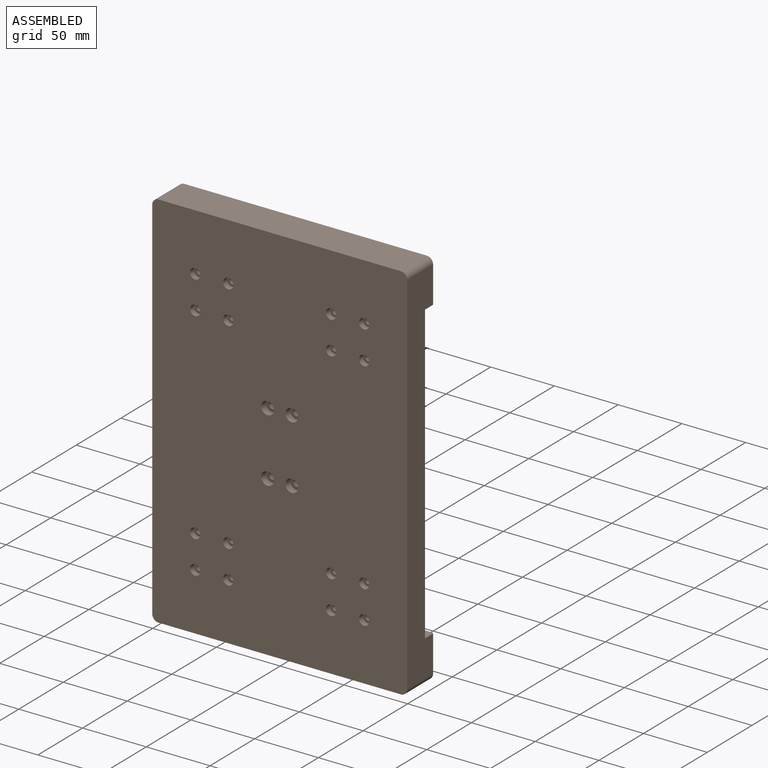
[diagram: assembled view]
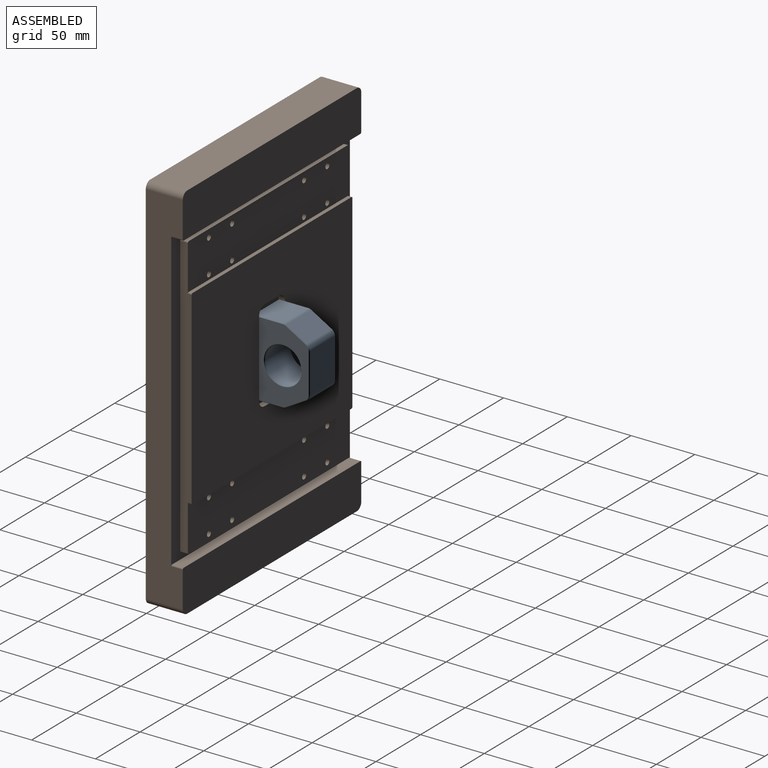
[diagram: assembled view, second angle]
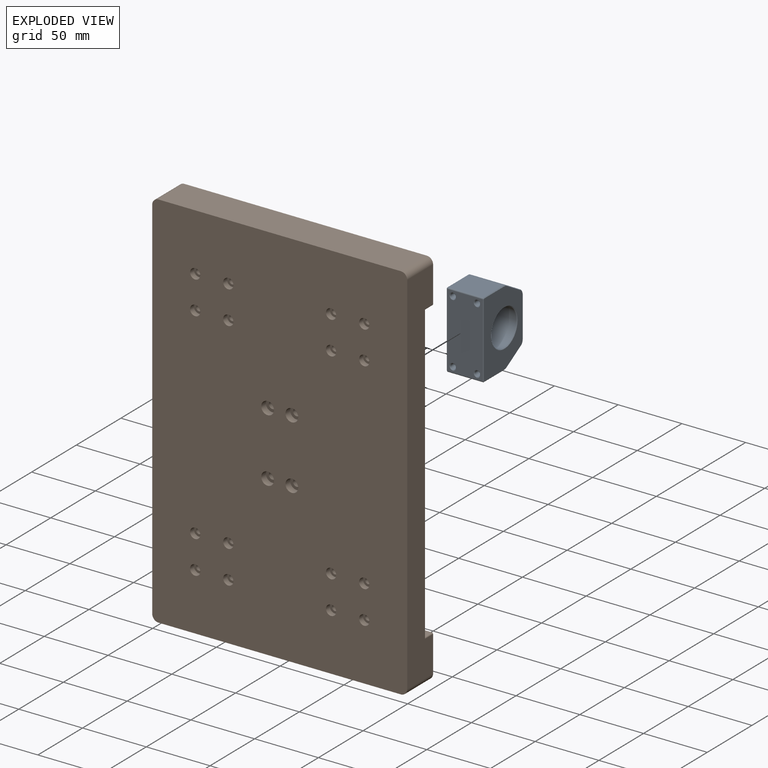
[diagram: exploded view]
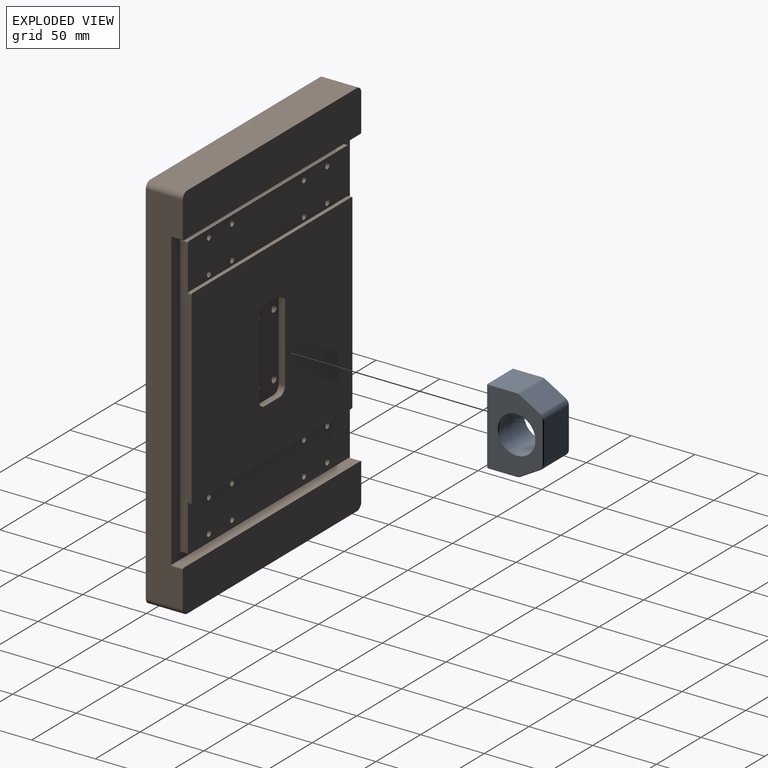
[diagram: exploded view, second angle]
FCSTD DOCUMENT  (FreeCAD 0.21R38887 (Git))
Label: СборкаСтола
License: All rights reserved
LicenseURL: http://en.wikipedia.org/wiki/All_rights_reserved
objects: App::FeaturePython×55, Part::FeaturePython×49, App::Link×4, App::LinkElement×4
note: 48 computed .brp shape members not serialized (recipe doc carries the construction recipe); baked Part::Feature solids carry a one-line shape summary decoded from their .brp
EXTERNAL_REF file=КронштейнГайки.FCStd obj=Body
EXTERNAL_REF file=Стол.FCStd obj=Body
EXTERNAL_REF file=HGH15CA.FCStd obj=Assembly
EXTERNAL_REF file=SFU1605.FCStd obj=Assembly

FEATURE [App::Link] Link  label="КронштейнГайкиX"
  AutoLinkLabel = false
  AutoPlacement = true
  LinkPlacement = pos=(-14.5,47,14.5) rot=(-0.707107,0,-0.707107;3.14159rad)
  LinkedObject = -> <external КронштейнГайки.FCStd>#Body
  Placement = pos=(-14.5,47,14.5) rot=(-0.707107,0,-0.707107;3.14159rad)
  SyncGroupVisibility = false
  TreeRank = 0
  _LinkOwner = 3680
  _LinkVersion = 1
FEATURE [App::Link] Link001  label="Body"
  AutoLinkLabel = false
  AutoPlacement = true
  LinkPlacement = pos=(3.2e-15,-0.5,14.5) rot=(-0.57735,-0.57735,-0.57735;2.0944rad)
  LinkedObject = -> <external Стол.FCStd>#Body
  Placement = pos=(3.2e-15,-0.5,14.5) rot=(-0.57735,-0.57735,-0.57735;2.0944rad)
  SyncGroupVisibility = false
  TreeRank = 0
  _LinkOwner = 3680
  _LinkVersion = 1
FEATURE [App::LinkElement] Link002_i0
  LinkPlacement = pos=(22.599,53.5,-77.5) rot=(0.57735,0.57735,-0.57735;2.0944rad)
  LinkedObject = -> <external HGH15CA.FCStd>#Assembly
  Placement = pos=(22.599,53.5,-77.5) rot=(0.57735,0.57735,-0.57735;2.0944rad)
  TreeRank = 86
  _LinkOwner = 3775
  _LinkVersion = 1
FEATURE [App::LinkElement] Link002_i1
  LinkPlacement = pos=(-84.001,53.5,-77.5) rot=(-0.57735,-0.57735,0.57735;4.18879rad)
  LinkedObject = -> <external HGH15CA.FCStd>#Assembly
  Placement = pos=(-84.001,53.5,-77.5) rot=(-0.57735,-0.57735,0.57735;4.18879rad)
  TreeRank = 87
  _LinkOwner = 3775
  _LinkVersion = 1
FEATURE [App::LinkElement] Link002_i2
  LinkPlacement = pos=(84.001,53.5,106.5) rot=(-0.57735,0.57735,-0.57735;4.18879rad)
  LinkedObject = -> <external HGH15CA.FCStd>#Assembly
  Placement = pos=(84.001,53.5,106.5) rot=(-0.57735,0.57735,-0.57735;4.18879rad)
  TreeRank = 88
  _LinkOwner = 3775
  _LinkVersion = 1
FEATURE [App::LinkElement] Link002_i3
  LinkPlacement = pos=(-22.599,53.5,106.5) rot=(0.57735,-0.57735,0.57735;2.0944rad)
  LinkedObject = -> <external HGH15CA.FCStd>#Assembly
  Placement = pos=(-22.599,53.5,106.5) rot=(0.57735,-0.57735,0.57735;2.0944rad)
  TreeRank = 89
  _LinkOwner = 3775
  _LinkVersion = 1
FEATURE [App::Link] Link002  label="HGH15CA"
  AutoLinkLabel = false
  AutoPlacement = true
  ElementCount = 4
  ElementList = -> [Link002_i0,Link002_i1,Link002_i2,Link002_i3]
  LinkedObject = -> <external HGH15CA.FCStd>#Assembly
  SyncGroupVisibility = false
  TreeRank = 85
  _LinkOwner = 3680
  _LinkVersion = 1
FEATURE [App::Link] Link003  label="SFU1606"
  AutoLinkLabel = false
  AutoPlacement = true
  LinkPlacement = pos=(-24.5,47,14.5) rot=(0,-1,0;1.5708rad)
  LinkedObject = -> <external SFU1605.FCStd>#Assembly
  Placement = pos=(-24.5,47,14.5) rot=(0,-1,0;1.5708rad)
  SyncGroupVisibility = false
  TreeRank = 138
  _LinkOwner = 3680
  _LinkVersion = 1
FEATURE [Part::FeaturePython] Parts  # WARN: FeaturePython — macro-defined, semantics opaque (R4)
  Group = -> [Link,Link001,Link002,Link003]
  GroupMode = 0
  InvalidShape = false
  TreeRank = 0
  ValidateShape = false
  _LinkVersion = 1
FEATURE [Part::FeaturePython] Assembly  # WARN: FeaturePython — macro-defined, semantics opaque (R4)
  AutoRelax = true
  BuildShape = 0
  Freeze = false
  Group = -> [Constraints,Elements,Parts]
  InvalidShape = false
  TreeRank = 0
  ValidateShape = false
  Verbose = false
  _LinkVersion = 1
  _SolverType = 1
  _Version = 1
FEATURE [App::FeaturePython] Constraints  # WARN: FeaturePython — macro-defined, semantics opaque (R4)
  Group = -> [Constraint001,Constraint,Constraint002,Constraint003,Constraint004,Constraint005,Constraint006,Constraint007,Constraint008,Constraint009,Constraint010,Constraint011,Constraint012,Constraint013,Constraint014,Constraint015,Constraint016,Constraint017]
  TreeRank = 0
  _LinkVersion = 1
  _Version = 1
FEATURE [App::FeaturePython] Elements  # WARN: FeaturePython — macro-defined, semantics opaque (R4)
  Group = -> [Element,Element001,_Element,_Element001,_Element002,Element002,Element003,Element004,Element005,Element006,Element007,Element008,Element009,Element010,Element011,Element012,Element013,Element014,Element015,Element016,Element018,Element019,Element020,Element021,Element022,Element023,Element024,_Element003,_Element004,_Element005,_Element006,_Element007,_Element008,_Element009,_Element010,+12 more]
  TreeRank = 0
  _LinkVersion = 1
FEATURE [Part::FeaturePython] Element  label="ПосадкаКронштейна"  # link proxy (typed FeaturePython)
  Detach = false
  InvalidShape = false
  LinkTransform = true
  LinkedObject = -> Link001 [Hole001.Face104]
  TreeRank = 2
  ValidateShape = false
  _LinkVersion = 1
  _Parent = -> Elements
FEATURE [Part::FeaturePython] Element001  label="КронштейнКСтолу"  # link proxy (typed FeaturePython)
  Detach = false
  InvalidShape = false
  LinkTransform = true
  LinkedObject = -> Link [Chamfer.Face2]
  Offset = pos=(0,0,0) rot=(1,0,0;3.14159rad)
  Placement = pos=(-1.65931e-09,47,2.63617e-09) rot=(0,0,1;3.14159rad)
  TreeRank = 3
  ValidateShape = false
  _LinkVersion = 1
  _Parent = -> Elements
FEATURE [App::FeaturePython] Constraint001  label="Locked"  # WARN: FeaturePython — macro-defined, semantics opaque (R4)
  Disabled = false
  Group = -> [ElementLink002]
  TreeRank = 7
  _ConstraintType = 0
  _LinkVersion = 1
  _Parent = -> Constraints
FEATURE [App::FeaturePython] ElementLink002  label="ФиксацияПоложенияСтола"  # link proxy (typed FeaturePython)
  LinkTransform = true
  LinkedObject = -> _Element
  TreeRank = 8
  _LinkVersion = 1
  _Parent = -> Constraint001
FEATURE [Part::FeaturePython] _Element  label="ФиксацияПоложенияСтола"  # link proxy (typed FeaturePython)
  Detach = false
  InvalidShape = false
  LinkTransform = true
  LinkedObject = -> Link001 [Hole001.Face51]
  TreeRank = 9
  ValidateShape = false
  _LinkVersion = 1
  _Parent = -> Elements
FEATURE [Part::FeaturePython] _Element001  # link proxy (typed FeaturePython)
  Detach = false
  InvalidShape = false
  LinkTransform = true
  LinkedObject = -> Link [Chamfer.Face14]
  TreeRank = 12
  ValidateShape = false
  _LinkVersion = 1
  _Parent = -> Elements
FEATURE [Part::FeaturePython] _Element002  # link proxy (typed FeaturePython)
  Detach = false
  InvalidShape = false
  LinkTransform = true
  LinkedObject = -> Link001 [Hole001.Face93]
  TreeRank = 14
  ValidateShape = false
  _LinkVersion = 1
  _Parent = -> Elements
FEATURE [App::FeaturePython] Constraint  label="PlaneAlignment"  # WARN: FeaturePython — macro-defined, semantics opaque (R4)
  Angle = 0
  AnglePitch = 0
  AngleRoll = 0
  Cascade = false
  Disabled = false
  Group = -> [ElementLink,ElementLink005]
  LockAngle = false
  TreeRank = 18
  _ConstraintType = 37
  _LinkVersion = 1
  _Parent = -> Constraints
FEATURE [App::FeaturePython] ElementLink  label="КронштейнКСтолу"  # link proxy (typed FeaturePython)
  LinkTransform = true
  LinkedObject = -> Element001
  TreeRank = 19
  _LinkVersion = 1
  _Parent = -> Constraint
FEATURE [App::FeaturePython] ElementLink005  label="ПосадкаКронштейна"  # link proxy (typed FeaturePython)
  LinkTransform = true
  LinkedObject = -> Element
  TreeRank = 20
  _LinkVersion = 1
  _Parent = -> Constraint
FEATURE [App::FeaturePython] Constraint002  label="PlaneAlignment001"  # WARN: FeaturePython — macro-defined, semantics opaque (R4)
  Angle = 0
  AnglePitch = 0
  AngleRoll = 0
  Cascade = false
  Disabled = false
  Group = -> [ElementLink006,ElementLink007]
  LockAngle = false
  TreeRank = 21
  _ConstraintType = 37
  _LinkVersion = 1
  _Parent = -> Constraints
FEATURE [App::FeaturePython] ElementLink006  label="_Element001"  # link proxy (typed FeaturePython)
  LinkTransform = true
  LinkedObject = -> _Element001
  TreeRank = 22
  _LinkVersion = 1
  _Parent = -> Constraint002
FEATURE [App::FeaturePython] ElementLink007  label="_Element002"  # link proxy (typed FeaturePython)
  LinkTransform = true
  LinkedObject = -> _Element002
  TreeRank = 23
  _LinkVersion = 1
  _Parent = -> Constraint002
FEATURE [Part::FeaturePython] Element002  label="ОтверстиеВКроншт"  # link proxy (typed FeaturePython)
  Detach = false
  InvalidShape = false
  LinkTransform = true
  LinkedObject = -> Link [Chamfer.Face22]
  TreeRank = 24
  ValidateShape = false
  _LinkVersion = 1
  _Parent = -> Elements
FEATURE [Part::FeaturePython] Element003  label="ОтверстиеСТолКроншт"  # link proxy (typed FeaturePython)
  Detach = false
  InvalidShape = false
  LinkTransform = true
  LinkedObject = -> Link001 [Hole001.Face103]
  TreeRank = 25
  ValidateShape = false
  _LinkVersion = 1
  _Parent = -> Elements
FEATURE [App::FeaturePython] Constraint003  label="AxialAlignment"  # WARN: FeaturePython — macro-defined, semantics opaque (R4)
  Angle = 0
  AnglePitch = 0
  AngleRoll = 0
  Disabled = false
  Group = -> [ElementLink008,ElementLink009]
  LockAngle = false
  Multiply = false
  TreeRank = 26
  _ConstraintType = 36
  _LinkVersion = 1
  _Parent = -> Constraints
FEATURE [App::FeaturePython] ElementLink008  label="ОтверстиеСТолКроншт"  # link proxy (typed FeaturePython)
  LinkTransform = true
  LinkedObject = -> Element003
  TreeRank = 27
  _LinkVersion = 1
  _Parent = -> Constraint003
FEATURE [App::FeaturePython] ElementLink009  label="ОтверстиеВКроншт"  # link proxy (typed FeaturePython)
  LinkTransform = true
  LinkedObject = -> Element002
  TreeRank = 28
  _LinkVersion = 1
  _Parent = -> Constraint003
FEATURE [Part::FeaturePython] Element004  label="ПлоскостьКареток1и2"  # link proxy (typed FeaturePython)
  Detach = false
  InvalidShape = false
  LinkTransform = true
  LinkedObject = -> Link001 [Hole001.Face47]
  TreeRank = 34
  ValidateShape = false
  _LinkVersion = 1
  _Parent = -> Elements
FEATURE [Part::FeaturePython] Element005  label="ПлоскостьКареток3и4"  # link proxy (typed FeaturePython)
  Detach = false
  InvalidShape = false
  LinkTransform = true
  LinkedObject = -> Link001 [Hole001.Face48]
  TreeRank = 35
  ValidateShape = false
  _LinkVersion = 1
  _Parent = -> Elements
FEATURE [Part::FeaturePython] Element006  label="БоковаяПлоскостьКареток1и2"  # link proxy (typed FeaturePython)
  Detach = false
  InvalidShape = false
  LinkTransform = true
  LinkedObject = -> Link001 [Hole001.Face74]
  TreeRank = 36
  ValidateShape = false
  _LinkVersion = 1
  _Parent = -> Elements
FEATURE [Part::FeaturePython] Element007  label="БоковаяПлоскостьКареток3и4"  # link proxy (typed FeaturePython)
  Detach = false
  InvalidShape = false
  LinkTransform = true
  LinkedObject = -> Link001 [Hole001.Face83]
  TreeRank = 37
  ValidateShape = false
  _LinkVersion = 1
  _Parent = -> Elements
FEATURE [Part::FeaturePython] Element008  label="СтолКареткаОтв1"  # link proxy (typed FeaturePython)
  Detach = false
  InvalidShape = false
  LinkTransform = true
  LinkedObject = -> Link001 [Hole001.Face80]
  TreeRank = 38
  ValidateShape = false
  _LinkVersion = 1
  _Parent = -> Elements
FEATURE [Part::FeaturePython] Element009  label="СтолКареткаОтв2"  # link proxy (typed FeaturePython)
  Detach = false
  InvalidShape = false
  LinkTransform = true
  LinkedObject = -> Link001 [Hole001.Face82]
  TreeRank = 39
  ValidateShape = false
  _LinkVersion = 1
  _Parent = -> Elements
FEATURE [Part::FeaturePython] Element010  label="СтолКареткаОтв3"  # link proxy (typed FeaturePython)
  Detach = false
  InvalidShape = false
  LinkTransform = true
  LinkedObject = -> Link001 [Hole001.Face81]
  TreeRank = 40
  ValidateShape = false
  _LinkVersion = 1
  _Parent = -> Elements
FEATURE [Part::FeaturePython] Element011  label="СтолКареткаОтв4"  # link proxy (typed FeaturePython)
  Detach = false
  InvalidShape = false
  LinkTransform = true
  LinkedObject = -> Link001 [Hole001.Face79]
  TreeRank = 41
  ValidateShape = false
  _LinkVersion = 1
  _Parent = -> Elements
FEATURE [Part::FeaturePython] Element012  label="СтолКаретка2Отв1"  # link proxy (typed FeaturePython)
  Detach = false
  InvalidShape = false
  LinkTransform = true
  LinkedObject = -> Link001 [Hole001.Face76]
  TreeRank = 42
  ValidateShape = false
  _LinkVersion = 1
  _Parent = -> Elements
FEATURE [Part::FeaturePython] Element013  label="СтолКаретка2Отв2"  # link proxy (typed FeaturePython)
  Detach = false
  InvalidShape = false
  LinkTransform = true
  LinkedObject = -> Link001 [Hole001.Face78]
  TreeRank = 43
  ValidateShape = false
  _LinkVersion = 1
  _Parent = -> Elements
FEATURE [Part::FeaturePython] Element014  label="СтолКаретка2Отв3"  # link proxy (typed FeaturePython)
  Detach = false
  InvalidShape = false
  LinkTransform = true
  LinkedObject = -> Link001 [Hole001.Face77]
  TreeRank = 44
  ValidateShape = false
  _LinkVersion = 1
  _Parent = -> Elements
FEATURE [Part::FeaturePython] Element015  label="СтолКаретка2Отв4"  # link proxy (typed FeaturePython)
  Detach = false
  InvalidShape = false
  LinkTransform = true
  LinkedObject = -> Link001 [Hole001.Face75]
  TreeRank = 45
  ValidateShape = false
  _LinkVersion = 1
  _Parent = -> Elements
FEATURE [Part::FeaturePython] Element016  label="СтолКаретка3Отв1"  # link proxy (typed FeaturePython)
  Detach = false
  InvalidShape = false
  LinkTransform = true
  LinkedObject = -> Link001 [Hole001.Face91]
  TreeRank = 76
  ValidateShape = false
  _LinkVersion = 1
  _Parent = -> Elements
FEATURE [Part::FeaturePython] Element018  label="СтолКаретка3Отв4"  # link proxy (typed FeaturePython)
  Detach = false
  InvalidShape = false
  LinkTransform = true
  LinkedObject = -> Link001 [Hole001.Face90]
  TreeRank = 78
  ValidateShape = false
  _LinkVersion = 1
  _Parent = -> Elements
FEATURE [Part::FeaturePython] Element019  label="СтолКаретка3Отв3"  # link proxy (typed FeaturePython)
  Detach = false
  InvalidShape = false
  LinkTransform = true
  LinkedObject = -> Link001 [Hole001.Face88]
  TreeRank = 79
  ValidateShape = false
  _LinkVersion = 1
  _Parent = -> Elements
FEATURE [Part::FeaturePython] Element020  label="СтолКаретка3Отв2"  # link proxy (typed FeaturePython)
  Detach = false
  InvalidShape = false
  LinkTransform = true
  LinkedObject = -> Link001 [Hole001.Face89]
  TreeRank = 80
  ValidateShape = false
  _LinkVersion = 1
  _Parent = -> Elements
FEATURE [Part::FeaturePython] Element021  label="СтолКаретка4Отв1"  # link proxy (typed FeaturePython)
  Detach = false
  InvalidShape = false
  LinkTransform = true
  LinkedObject = -> Link001 [Hole001.Face87]
  TreeRank = 81
  ValidateShape = false
  _LinkVersion = 1
  _Parent = -> Elements
FEATURE [Part::FeaturePython] Element022  label="СтолКаретка4Отв2"  # link proxy (typed FeaturePython)
  Detach = false
  InvalidShape = false
  LinkTransform = true
  LinkedObject = -> Link001 [Hole001.Face85]
  TreeRank = 82
  ValidateShape = false
  _LinkVersion = 1
  _Parent = -> Elements
FEATURE [Part::FeaturePython] Element023  label="СтолКаретка4Отв4"  # link proxy (typed FeaturePython)
  Detach = false
  InvalidShape = false
  LinkTransform = true
  LinkedObject = -> Link001 [Hole001.Face86]
  TreeRank = 83
  ValidateShape = false
  _LinkVersion = 1
  _Parent = -> Elements
FEATURE [Part::FeaturePython] Element024  label="СтолКаретка4Отв3"  # link proxy (typed FeaturePython)
  Detach = false
  InvalidShape = false
  LinkTransform = true
  LinkedObject = -> Link001 [Hole001.Face84]
  TreeRank = 84
  ValidateShape = false
  _LinkVersion = 1
  _Parent = -> Elements
FEATURE [App::FeaturePython] Constraint004  label="PlaneAlignment002"  # WARN: FeaturePython — macro-defined, semantics opaque (R4)
  Angle = 0
  AnglePitch = 0
  AngleRoll = 0
  Cascade = false
  Disabled = false
  Group = -> [ElementLink010,ElementLink011]
  LockAngle = false
  TreeRank = 90
  _ConstraintType = 37
  _LinkVersion = 1
  _Parent = -> Constraints
FEATURE [App::FeaturePython] ElementLink010  label="БоковаяПласкостьПрилегания@HGH15CA@#0"  # link proxy (typed FeaturePython)
  LinkTransform = true
  LinkedObject = -> _Element003
  TreeRank = 91
  _LinkVersion = 1
  _Parent = -> Constraint004
FEATURE [Part::FeaturePython] _Element003  label="БоковаяПласкостьПрилегания@HGH15CA@#0"  # link proxy (typed FeaturePython)
  Detach = false
  InvalidShape = false
  LinkTransform = true
  LinkedObject = -> Link002 [Link002_i0.1.$БоковаяПласкостьПрилегания.]
  TreeRank = 92
  ValidateShape = false
  _LinkVersion = 1
  _Parent = -> Elements
FEATURE [App::FeaturePython] ElementLink011  label="БоковаяПлоскостьКареток1и2"  # link proxy (typed FeaturePython)
  LinkTransform = true
  LinkedObject = -> Element006
  TreeRank = 93
  _LinkVersion = 1
  _Parent = -> Constraint004
FEATURE [App::FeaturePython] Constraint005  label="PlaneAlignment003"  # WARN: FeaturePython — macro-defined, semantics opaque (R4)
  Angle = 0
  AnglePitch = 0
  AngleRoll = 0
  Cascade = false
  Disabled = false
  Group = -> [ElementLink012,ElementLink013]
  LockAngle = false
  TreeRank = 94
  _ConstraintType = 37
  _LinkVersion = 1
  _Parent = -> Constraints
FEATURE [App::FeaturePython] ElementLink012  label="ПлоскостьПрилегания@HGH15CA@#0"  # link proxy (typed FeaturePython)
  LinkTransform = true
  LinkedObject = -> _Element004
  TreeRank = 95
  _LinkVersion = 1
  _Parent = -> Constraint005
FEATURE [Part::FeaturePython] _Element004  label="ПлоскостьПрилегания@HGH15CA@#0"  # link proxy (typed FeaturePython)
  Detach = false
  InvalidShape = false
  LinkTransform = true
  LinkedObject = -> Link002 [Link002_i0.1.$ПлоскостьПрилегания.]
  TreeRank = 96
  ValidateShape = false
  _LinkVersion = 1
  _Parent = -> Elements
FEATURE [App::FeaturePython] ElementLink013  label="ПлоскостьКареток1и2"  # link proxy (typed FeaturePython)
  LinkTransform = true
  LinkedObject = -> Element004
  TreeRank = 97
  _LinkVersion = 1
  _Parent = -> Constraint005
FEATURE [App::FeaturePython] Constraint006  label="AxialAlignment001"  # WARN: FeaturePython — macro-defined, semantics opaque (R4)
  Angle = 0
  AnglePitch = 0
  AngleRoll = 0
  Disabled = false
  Group = -> [ElementLink014,ElementLink015]
  LockAngle = false
  Multiply = false
  TreeRank = 98
  _ConstraintType = 36
  _LinkVersion = 1
  _Parent = -> Constraints
FEATURE [App::FeaturePython] ElementLink014  label="Отв1@HGH15CA@#0"  # link proxy (typed FeaturePython)
  LinkTransform = true
  LinkedObject = -> _Element005
  TreeRank = 99
  _LinkVersion = 1
  _Parent = -> Constraint006
FEATURE [Part::FeaturePython] _Element005  label="Отв1@HGH15CA@#0"  # link proxy (typed FeaturePython)
  Detach = false
  InvalidShape = false
  LinkTransform = true
  LinkedObject = -> Link002 [Link002_i0.1.$Отв1.]
  TreeRank = 100
  ValidateShape = false
  _LinkVersion = 1
  _Parent = -> Elements
FEATURE [App::FeaturePython] ElementLink015  label="СтолКареткаОтв2"  # link proxy (typed FeaturePython)
  LinkTransform = true
  LinkedObject = -> Element009
  TreeRank = 101
  _LinkVersion = 1
  _Parent = -> Constraint006
FEATURE [App::FeaturePython] Constraint007  label="PlaneAlignment004"  # WARN: FeaturePython — macro-defined, semantics opaque (R4)
  Angle = 0
  AnglePitch = 0
  AngleRoll = 0
  Cascade = false
  Disabled = false
  Group = -> [ElementLink016,ElementLink017]
  LockAngle = false
  TreeRank = 102
  _ConstraintType = 37
  _LinkVersion = 1
  _Parent = -> Constraints
FEATURE [App::FeaturePython] ElementLink016  label="БоковаяПласкостьПрилегания@HGH15CA@#1"  # link proxy (typed FeaturePython)
  LinkTransform = true
  LinkedObject = -> _Element006
  TreeRank = 103
  _LinkVersion = 1
  _Parent = -> Constraint007
FEATURE [Part::FeaturePython] _Element006  label="БоковаяПласкостьПрилегания@HGH15CA@#1"  # link proxy (typed FeaturePython)
  Detach = false
  InvalidShape = false
  LinkTransform = true
  LinkedObject = -> Link002 [Link002_i1.1.$БоковаяПласкостьПрилегания.]
  TreeRank = 104
  ValidateShape = false
  _LinkVersion = 1
  _Parent = -> Elements
FEATURE [App::FeaturePython] ElementLink017  label="БоковаяПлоскостьКареток1и2"  # link proxy (typed FeaturePython)
  LinkTransform = true
  LinkedObject = -> Element006
  TreeRank = 105
  _LinkVersion = 1
  _Parent = -> Constraint007
FEATURE [App::FeaturePython] Constraint008  label="PlaneAlignment005"  # WARN: FeaturePython — macro-defined, semantics opaque (R4)
  Angle = 0
  AnglePitch = 0
  AngleRoll = 0
  Cascade = false
  Disabled = false
  Group = -> [ElementLink018,ElementLink019]
  LockAngle = false
  TreeRank = 106
  _ConstraintType = 37
  _LinkVersion = 1
  _Parent = -> Constraints
FEATURE [App::FeaturePython] ElementLink018  label="ПлоскостьПрилегания@HGH15CA@#1"  # link proxy (typed FeaturePython)
  LinkTransform = true
  LinkedObject = -> _Element007
  TreeRank = 107
  _LinkVersion = 1
  _Parent = -> Constraint008
FEATURE [Part::FeaturePython] _Element007  label="ПлоскостьПрилегания@HGH15CA@#1"  # link proxy (typed FeaturePython)
  Detach = false
  InvalidShape = false
  LinkTransform = true
  LinkedObject = -> Link002 [Link002_i1.1.$ПлоскостьПрилегания.]
  TreeRank = 108
  ValidateShape = false
  _LinkVersion = 1
  _Parent = -> Elements
FEATURE [App::FeaturePython] ElementLink019  label="ПлоскостьКареток1и2"  # link proxy (typed FeaturePython)
  LinkTransform = true
  LinkedObject = -> Element004
  TreeRank = 109
  _LinkVersion = 1
  _Parent = -> Constraint008
FEATURE [App::FeaturePython] Constraint009  label="AxialAlignment002"  # WARN: FeaturePython — macro-defined, semantics opaque (R4)
  Angle = 0
  AnglePitch = 0
  AngleRoll = 0
  Disabled = false
  Group = -> [ElementLink020,ElementLink021]
  LockAngle = false
  Multiply = false
  TreeRank = 110
  _ConstraintType = 36
  _LinkVersion = 1
  _Parent = -> Constraints
FEATURE [App::FeaturePython] ElementLink020  label="Отв1@HGH15CA@#1"  # link proxy (typed FeaturePython)
  LinkTransform = true
  LinkedObject = -> _Element008
  TreeRank = 111
  _LinkVersion = 1
  _Parent = -> Constraint009
FEATURE [Part::FeaturePython] _Element008  label="Отв1@HGH15CA@#1"  # link proxy (typed FeaturePython)
  Detach = false
  InvalidShape = false
  LinkTransform = true
  LinkedObject = -> Link002 [Link002_i1.1.$Отв1.]
  TreeRank = 112
  ValidateShape = false
  _LinkVersion = 1
  _Parent = -> Elements
FEATURE [App::FeaturePython] ElementLink021  label="СтолКаретка2Отв2"  # link proxy (typed FeaturePython)
  LinkTransform = true
  LinkedObject = -> Element013
  TreeRank = 113
  _LinkVersion = 1
  _Parent = -> Constraint009
FEATURE [App::FeaturePython] Constraint010  label="PlaneAlignment006"  # WARN: FeaturePython — macro-defined, semantics opaque (R4)
  Angle = 0
  AnglePitch = 0
  AngleRoll = 0
  Cascade = false
  Disabled = false
  Group = -> [ElementLink022,ElementLink023]
  LockAngle = false
  TreeRank = 114
  _ConstraintType = 37
  _LinkVersion = 1
  _Parent = -> Constraints
FEATURE [App::FeaturePython] ElementLink022  label="БоковаяПласкостьПрилегания@HGH15CA@#2"  # link proxy (typed FeaturePython)
  LinkTransform = true
  LinkedObject = -> _Element009
  TreeRank = 115
  _LinkVersion = 1
  _Parent = -> Constraint010
FEATURE [Part::FeaturePython] _Element009  label="БоковаяПласкостьПрилегания@HGH15CA@#2"  # link proxy (typed FeaturePython)
  Detach = false
  InvalidShape = false
  LinkTransform = true
  LinkedObject = -> Link002 [Link002_i2.1.$БоковаяПласкостьПрилегания.]
  TreeRank = 116
  ValidateShape = false
  _LinkVersion = 1
  _Parent = -> Elements
FEATURE [App::FeaturePython] ElementLink023  label="БоковаяПлоскостьКареток3и4"  # link proxy (typed FeaturePython)
  LinkTransform = true
  LinkedObject = -> Element007
  TreeRank = 117
  _LinkVersion = 1
  _Parent = -> Constraint010
FEATURE [App::FeaturePython] Constraint011  label="PlaneAlignment007"  # WARN: FeaturePython — macro-defined, semantics opaque (R4)
  Angle = 0
  AnglePitch = 0
  AngleRoll = 0
  Cascade = false
  Disabled = false
  Group = -> [ElementLink024,ElementLink025]
  LockAngle = false
  TreeRank = 118
  _ConstraintType = 37
  _LinkVersion = 1
  _Parent = -> Constraints
FEATURE [App::FeaturePython] ElementLink024  label="ПлоскостьПрилегания@HGH15CA@#2"  # link proxy (typed FeaturePython)
  LinkTransform = true
  LinkedObject = -> _Element010
  TreeRank = 119
  _LinkVersion = 1
  _Parent = -> Constraint011
FEATURE [Part::FeaturePython] _Element010  label="ПлоскостьПрилегания@HGH15CA@#2"  # link proxy (typed FeaturePython)
  Detach = false
  InvalidShape = false
  LinkTransform = true
  LinkedObject = -> Link002 [Link002_i2.1.$ПлоскостьПрилегания.]
  TreeRank = 120
  ValidateShape = false
  _LinkVersion = 1
  _Parent = -> Elements
FEATURE [App::FeaturePython] ElementLink025  label="ПлоскостьКареток3и4"  # link proxy (typed FeaturePython)
  LinkTransform = true
  LinkedObject = -> Element005
  TreeRank = 121
  _LinkVersion = 1
  _Parent = -> Constraint011
FEATURE [App::FeaturePython] Constraint012  label="AxialAlignment003"  # WARN: FeaturePython — macro-defined, semantics opaque (R4)
  Angle = 0
  AnglePitch = 0
  AngleRoll = 0
  Disabled = false
  Group = -> [ElementLink026,ElementLink027]
  LockAngle = false
  Multiply = false
  TreeRank = 122
  _ConstraintType = 36
  _LinkVersion = 1
  _Parent = -> Constraints
FEATURE [App::FeaturePython] ElementLink026  label="Отв1@HGH15CA@#2"  # link proxy (typed FeaturePython)
  LinkTransform = true
  LinkedObject = -> _Element011
  TreeRank = 123
  _LinkVersion = 1
  _Parent = -> Constraint012
FEATURE [Part::FeaturePython] _Element011  label="Отв1@HGH15CA@#2"  # link proxy (typed FeaturePython)
  Detach = false
  InvalidShape = false
  LinkTransform = true
  LinkedObject = -> Link002 [Link002_i2.1.$Отв1.]
  TreeRank = 124
  ValidateShape = false
  _LinkVersion = 1
  _Parent = -> Elements
FEATURE [App::FeaturePython] ElementLink027  label="СтолКаретка3Отв3"  # link proxy (typed FeaturePython)
  LinkTransform = true
  LinkedObject = -> Element019
  TreeRank = 125
  _LinkVersion = 1
  _Parent = -> Constraint012
FEATURE [App::FeaturePython] Constraint013  label="PlaneAlignment008"  # WARN: FeaturePython — macro-defined, semantics opaque (R4)
  Angle = 0
  AnglePitch = 0
  AngleRoll = 0
  Cascade = false
  Disabled = false
  Group = -> [ElementLink028,ElementLink029]
  LockAngle = false
  TreeRank = 126
  _ConstraintType = 37
  _LinkVersion = 1
  _Parent = -> Constraints
FEATURE [App::FeaturePython] ElementLink028  label="БоковаяПласкостьПрилегания@HGH15CA@#3"  # link proxy (typed FeaturePython)
  LinkTransform = true
  LinkedObject = -> _Element012
  TreeRank = 127
  _LinkVersion = 1
  _Parent = -> Constraint013
FEATURE [Part::FeaturePython] _Element012  label="БоковаяПласкостьПрилегания@HGH15CA@#3"  # link proxy (typed FeaturePython)
  Detach = false
  InvalidShape = false
  LinkTransform = true
  LinkedObject = -> Link002 [Link002_i3.1.$БоковаяПласкостьПрилегания.]
  TreeRank = 128
  ValidateShape = false
  _LinkVersion = 1
  _Parent = -> Elements
FEATURE [App::FeaturePython] ElementLink029  label="БоковаяПлоскостьКареток3и4"  # link proxy (typed FeaturePython)
  LinkTransform = true
  LinkedObject = -> Element007
  TreeRank = 129
  _LinkVersion = 1
  _Parent = -> Constraint013
FEATURE [App::FeaturePython] Constraint014  label="PlaneAlignment009"  # WARN: FeaturePython — macro-defined, semantics opaque (R4)
  Angle = 0
  AnglePitch = 0
  AngleRoll = 0
  Cascade = false
  Disabled = false
  Group = -> [ElementLink030,ElementLink031]
  LockAngle = false
  TreeRank = 130
  _ConstraintType = 37
  _LinkVersion = 1
  _Parent = -> Constraints
FEATURE [App::FeaturePython] ElementLink030  label="ПлоскостьПрилегания@HGH15CA@#3"  # link proxy (typed FeaturePython)
  LinkTransform = true
  LinkedObject = -> _Element013
  TreeRank = 131
  _LinkVersion = 1
  _Parent = -> Constraint014
FEATURE [Part::FeaturePython] _Element013  label="ПлоскостьПрилегания@HGH15CA@#3"  # link proxy (typed FeaturePython)
  Detach = false
  InvalidShape = false
  LinkTransform = true
  LinkedObject = -> Link002 [Link002_i3.1.$ПлоскостьПрилегания.]
  TreeRank = 132
  ValidateShape = false
  _LinkVersion = 1
  _Parent = -> Elements
FEATURE [App::FeaturePython] ElementLink031  label="ПлоскостьКареток3и4"  # link proxy (typed FeaturePython)
  LinkTransform = true
  LinkedObject = -> Element005
  TreeRank = 133
  _LinkVersion = 1
  _Parent = -> Constraint014
FEATURE [App::FeaturePython] Constraint015  label="AxialAlignment004"  # WARN: FeaturePython — macro-defined, semantics opaque (R4)
  Angle = 0
  AnglePitch = 0
  AngleRoll = 0
  Disabled = false
  Group = -> [ElementLink032,ElementLink033]
  LockAngle = false
  Multiply = false
  TreeRank = 134
  _ConstraintType = 36
  _LinkVersion = 1
  _Parent = -> Constraints
FEATURE [App::FeaturePython] ElementLink032  label="Отв1@HGH15CA@#3"  # link proxy (typed FeaturePython)
  LinkTransform = true
  LinkedObject = -> _Element014
  TreeRank = 135
  _LinkVersion = 1
  _Parent = -> Constraint015
FEATURE [Part::FeaturePython] _Element014  label="Отв1@HGH15CA@#3"  # link proxy (typed FeaturePython)
  Detach = false
  InvalidShape = false
  LinkTransform = true
  LinkedObject = -> Link002 [Link002_i3.1.$Отв1.]
  TreeRank = 136
  ValidateShape = false
  _LinkVersion = 1
  _Parent = -> Elements
FEATURE [App::FeaturePython] ElementLink033  label="СтолКаретка4Отв3"  # link proxy (typed FeaturePython)
  LinkTransform = true
  LinkedObject = -> Element024
  TreeRank = 137
  _LinkVersion = 1
  _Parent = -> Constraint015
FEATURE [Part::FeaturePython] Element025  label="ГайкаШВППосадка"  # link proxy (typed FeaturePython)
  Detach = false
  InvalidShape = false
  LinkTransform = true
  LinkedObject = -> Link003 [1.$Element.]
  TreeRank = 139
  ValidateShape = false
  _LinkVersion = 1
  _Parent = -> Elements
FEATURE [Part::FeaturePython] Element026  # link proxy (typed FeaturePython)
  Detach = false
  InvalidShape = false
  LinkTransform = true
  LinkedObject = -> Link003 [1.$Element001.]
  TreeRank = 140
  ValidateShape = false
  _LinkVersion = 1
  _Parent = -> Elements
FEATURE [Part::FeaturePython] Element027  # link proxy (typed FeaturePython)
  Detach = false
  InvalidShape = false
  LinkTransform = true
  LinkedObject = -> Link [Chamfer.Face55]
  TreeRank = 141
  ValidateShape = false
  _LinkVersion = 1
  _Parent = -> Elements
FEATURE [App::FeaturePython] Constraint016  label="AxialAlignment005"  # WARN: FeaturePython — macro-defined, semantics opaque (R4)
  Angle = 0
  AnglePitch = 0
  AngleRoll = 0
  Disabled = false
  Group = -> [ElementLink034,ElementLink035]
  LockAngle = false
  Multiply = false
  TreeRank = 142
  _ConstraintType = 36
  _LinkVersion = 1
  _Parent = -> Constraints
FEATURE [App::FeaturePython] ElementLink034  label="Element027"  # link proxy (typed FeaturePython)
  LinkTransform = true
  LinkedObject = -> Element027
  TreeRank = 143
  _LinkVersion = 1
  _Parent = -> Constraint016
FEATURE [App::FeaturePython] ElementLink035  label="Element026"  # link proxy (typed FeaturePython)
  LinkTransform = true
  LinkedObject = -> Element026
  TreeRank = 144
  _LinkVersion = 1
  _Parent = -> Constraint016
FEATURE [App::FeaturePython] Constraint017  label="PlaneAlignment010"  # WARN: FeaturePython — macro-defined, semantics opaque (R4)
  Angle = 0
  AnglePitch = 0
  AngleRoll = 0
  Cascade = false
  Disabled = false
  Group = -> [ElementLink036,ElementLink037]
  LockAngle = false
  TreeRank = 145
  _ConstraintType = 37
  _LinkVersion = 1
  _Parent = -> Constraints
FEATURE [App::FeaturePython] ElementLink036  label="ГайкаШВППосадка"  # link proxy (typed FeaturePython)
  LinkTransform = true
  LinkedObject = -> Element025
  TreeRank = 146
  _LinkVersion = 1
  _Parent = -> Constraint017
FEATURE [App::FeaturePython] ElementLink037  label="_Element001"  # link proxy (typed FeaturePython)
  LinkTransform = true
  LinkedObject = -> _Element001
  TreeRank = 147
  _LinkVersion = 1
  _Parent = -> Constraint017
FEATURE [Part::FeaturePython] Element028  # link proxy (typed FeaturePython)
  Detach = false
  InvalidShape = false
  LinkTransform = true
  LinkedObject = -> Link003 [1.$Element002.]
  TreeRank = 148
  ValidateShape = false
  _LinkVersion = 1
  _Parent = -> Elements
FEATURE [Part::FeaturePython] Element029  # link proxy (typed FeaturePython)
  Detach = false
  InvalidShape = false
  LinkTransform = true
  LinkedObject = -> Link003 [1.$Element003.]
  TreeRank = 149
  ValidateShape = false
  _LinkVersion = 1
  _Parent = -> Elements
FEATURE [Part::FeaturePython] Element030  # link proxy (typed FeaturePython)
  Detach = false
  InvalidShape = false
  LinkTransform = true
  LinkedObject = -> Link001 [Hole001.Edge13]
  TreeRank = 150
  ValidateShape = false
  _LinkVersion = 1
  _Parent = -> Elements
FEATURE [Part::FeaturePython] Element031  # link proxy (typed FeaturePython)
  Detach = false
  InvalidShape = false
  LinkTransform = true
  LinkedObject = -> Link001 [Hole001.Edge5]
  TreeRank = 151
  ValidateShape = false
  _LinkVersion = 1
  _Parent = -> Elements
FEATURE [Part::FeaturePython] Element032  # link proxy (typed FeaturePython)
  Detach = false
  InvalidShape = false
  LinkTransform = true
  LinkedObject = -> Link001 [Hole001.Edge42]
  TreeRank = 152
  ValidateShape = false
  _LinkVersion = 1
  _Parent = -> Elements

RESOLVED EXTERNAL PARTS (link-assembly join: the EXTERNAL_REF files above that resolve inside this repo's crawl, each included once):
---- part HGH15CA.FCStd = doc fcstd_36752016338e ----
FCSTD DOCUMENT  (FreeCAD 0.21R38887 (Git))
Label: HGH15CA
License: All rights reserved
LicenseURL: http://en.wikipedia.org/wiki/All_rights_reserved
objects: Part::FeaturePython×8, App::FeaturePython×2, Part::Feature×1
note: 8 computed .brp shape members not serialized (recipe doc carries the construction recipe); baked Part::Feature solids carry a one-line shape summary decoded from their .brp

FEATURE [App::FeaturePython] Constraints  # WARN: FeaturePython — macro-defined, semantics opaque (R4)
  TreeRank = 3
  _LinkVersion = 1
  _Version = 1
FEATURE [Part::Feature] Solid  label="HGH15CAZ0H_FILE"
  InvalidShape = false
  TreeRank = 12
  ValidateShape = false
  shape: bbox 34 x 69.56 x 23.7 mm, 296 faces (baked)
FEATURE [Part::FeaturePython] Parts  label="HGH15CAZ0H"  # WARN: FeaturePython — macro-defined, semantics opaque (R4)
  Group = -> [Solid]
  GroupMode = 0
  InvalidShape = false
  TreeRank = 5
  ValidateShape = false
  _LinkVersion = 1
FEATURE [Part::FeaturePython] Assembly  label="HGH15CA"  # WARN: FeaturePython — macro-defined, semantics opaque (R4)
  AutoRelax = true
  BuildShape = 0
  Freeze = false
  Group = -> [Constraints,Elements,Parts]
  InvalidShape = false
  TreeRank = 2
  ValidateShape = false
  Verbose = false
  _LinkVersion = 1
  _SolverType = 1
  _Version = 1
FEATURE [App::FeaturePython] Elements  # WARN: FeaturePython — macro-defined, semantics opaque (R4)
  Group = -> [Element,Element001,Element002,Element003,Element004,Element005]
  TreeRank = 4
  _LinkVersion = 1
FEATURE [Part::FeaturePython] Element  label="ПлоскостьПрилегания"  # link proxy (typed FeaturePython)
  Detach = false
  InvalidShape = false
  LinkTransform = true
  LinkedObject = -> Solid [Face265]
  TreeRank = 6
  ValidateShape = false
  _LinkVersion = 1
  _Parent = -> Elements
FEATURE [Part::FeaturePython] Element001  label="БоковаяПласкостьПрилегания"  # link proxy (typed FeaturePython)
  Detach = false
  InvalidShape = false
  LinkTransform = true
  LinkedObject = -> Solid [Face253]
  TreeRank = 7
  ValidateShape = false
  _LinkVersion = 1
  _Parent = -> Elements
FEATURE [Part::FeaturePython] Element002  label="Отв1"  # link proxy (typed FeaturePython)
  Detach = false
  InvalidShape = false
  LinkTransform = true
  LinkedObject = -> Solid [Face261]
  TreeRank = 8
  ValidateShape = false
  _LinkVersion = 1
  _Parent = -> Elements
FEATURE [Part::FeaturePython] Element003  label="Отв2"  # link proxy (typed FeaturePython)
  Detach = false
  InvalidShape = false
  LinkTransform = true
  LinkedObject = -> Solid [Face257]
  TreeRank = 9
  ValidateShape = false
  _LinkVersion = 1
  _Parent = -> Elements
FEATURE [Part::FeaturePython] Element004  label="Отв3"  # link proxy (typed FeaturePython)
  Detach = false
  InvalidShape = false
  LinkTransform = true
  LinkedObject = -> Solid [Face263]
  TreeRank = 10
  ValidateShape = false
  _LinkVersion = 1
  _Parent = -> Elements
FEATURE [Part::FeaturePython] Element005  label="Отв4"  # link proxy (typed FeaturePython)
  Detach = false
  InvalidShape = false
  LinkTransform = true
  LinkedObject = -> Solid [Face259]
  TreeRank = 11
  ValidateShape = false
  _LinkVersion = 1
  _Parent = -> Elements
---- part SFU1605.FCStd = doc fcstd_8433576ca500 ----
FCSTD DOCUMENT  (FreeCAD 0.21R38887 (Git))
Label: SFU1605
License: All rights reserved
LicenseURL: http://en.wikipedia.org/wiki/All_rights_reserved
objects: Part::Feature×7, Part::FeaturePython×6, App::Link×2, App::Part×2, App::FeaturePython×2
note: 12 computed .brp shape members not serialized (recipe doc carries the construction recipe); baked Part::Feature solids carry a one-line shape summary decoded from their .brp

FEATURE [Part::Feature] Solid  label="SFU1605-3"
  InvalidShape = false
  TreeRank = 8
  ValidateShape = false
  shape: bbox 48 x 40 x 43 mm, 126 faces (baked)
FEATURE [Part::Feature] Solid001  label="SFU1605 Washer Front"
  InvalidShape = false
  TreeRank = 9
  ValidateShape = false
  shape: bbox 22.5 x 22.5 x 11.47 mm, 23 faces (baked)
FEATURE [Part::Feature] Solid002  label="SFU1605 Washer Back"
  InvalidShape = false
  TreeRank = 10
  ValidateShape = false
  shape: bbox 22.5 x 22.5 x 11.47 mm, 22 faces (baked)
FEATURE [Part::Feature] Solid003  label="socket set screw cone point_iso_ISO 4027 - M3 x 5-N"
  InvalidShape = false
  Placement = pos=(0,16.25,-2.75) rot=(0,0,-1;1.5708rad)
  TreeRank = 11
  ValidateShape = false
  shape: bbox 3 x 5 x 3 mm, 14 faces (baked)
FEATURE [Part::Feature] Solid004  label="socket set screw cone point_iso_ISO 4027 - M3 x 2.5-N"
  InvalidShape = false
  Placement = pos=(0,13.75,-40.25) rot=(0,0,-1;1.5708rad)
  TreeRank = 12
  ValidateShape = false
  shape: bbox 3 x 2.5 x 3 mm, 14 faces (baked)
FEATURE [App::Link] Link  label="socket set screw cone point_iso_ISO 4027 - M3 x 5-N001"
  AutoLinkLabel = true
  AutoPlacement = true
  LinkPlacement = pos=(4e-16,-16.25,-2.75) rot=(0.707107,0.707107,0;3.14159rad)
  LinkedObject = -> Solid003
  Placement = pos=(4e-16,-16.25,-2.75) rot=(0.707107,0.707107,0;3.14159rad)
  SyncGroupVisibility = false
  TreeRank = 13
  _LinkVersion = 1
FEATURE [App::Link] Link001  label="socket set screw cone point_iso_ISO 4027 - M3 x 2.5-N001"
  AutoLinkLabel = true
  AutoPlacement = true
  LinkPlacement = pos=(0,-13.75,-40.25) rot=(0,0,1;1.5708rad)
  LinkedObject = -> Solid004
  Placement = pos=(0,-13.75,-40.25) rot=(0,0,1;1.5708rad)
  SyncGroupVisibility = false
  TreeRank = 14
  _LinkVersion = 1
FEATURE [Part::Feature] Solid005  label="Grease Nipple A_A M6x1.00"
  InvalidShape = false
  TreeRank = 21
  ValidateShape = false
  shape: bbox 9.143 x 16.91 x 9.143 mm, 68 faces (baked)
FEATURE [Part::Feature] Solid006  label="Steel Ball_O 2.50"
  InvalidShape = false
  Placement = pos=(0,1.19521,0) rot=(0,0,1;0rad)
  TreeRank = 22
  ValidateShape = false
  shape: bbox 2.5 x 2.5 x 2.5 mm, 2 faces (baked)
FEATURE [App::Part] Part  label="Grease Nipple A M6x1.00"
  ClaimAllChildren = false
  ExportMode = 1
  Group = -> [Solid005,Solid006]
  Origin = -> Origin
  Placement = pos=(29.0604,12.0372,-5) rot=(0.485653,0.726831,-0.485653;1.88458rad)
  TreeRank = 24
  _ExportChildren = -> [Solid005,Solid006]
  _GroupVersion = 1
FEATURE [App::Part] Part001  label="SFU1605-004"
  ClaimAllChildren = false
  ExportMode = 1
  Group = -> [Solid,Solid001,Solid002,Solid003,Solid004,Link,Link001,Part]
  Origin = -> Origin001
  TreeRank = 26
  _ExportChildren = -> [Solid,Solid001,Solid002,Solid003,Solid004,Link,Link001,Part]
  _GroupVersion = 1
FEATURE [App::FeaturePython] Constraints  # WARN: FeaturePython — macro-defined, semantics opaque (R4)
  TreeRank = 28
  _LinkVersion = 1
  _Version = 1
FEATURE [Part::FeaturePython] Parts  label="Деталі"  # WARN: FeaturePython — macro-defined, semantics opaque (R4)
  Group = -> [Part001]
  GroupMode = 0
  InvalidShape = false
  TreeRank = 30
  ValidateShape = false
  _LinkVersion = 1
FEATURE [Part::FeaturePython] Assembly  label="SFU1606"  # WARN: FeaturePython — macro-defined, semantics opaque (R4)
  AutoRelax = true
  BuildShape = 0
  Freeze = false
  Group = -> [Constraints,Elements,Parts]
  InvalidShape = false
  TreeRank = 27
  ValidateShape = false
  Verbose = false
  _LinkVersion = 1
  _SolverType = 1
  _Version = 1
FEATURE [App::FeaturePython] Elements  # WARN: FeaturePython — macro-defined, semantics opaque (R4)
  Group = -> [Element,Element001,Element002,Element003]
  TreeRank = 29
  _LinkVersion = 1
FEATURE [Part::FeaturePython] Element  # link proxy (typed FeaturePython)
  Detach = false
  InvalidShape = false
  LinkTransform = true
  LinkedObject = -> Part001 [Solid.Face63]
  TreeRank = 31
  ValidateShape = false
  _LinkVersion = 1
  _Parent = -> Elements
FEATURE [Part::FeaturePython] Element001  # link proxy (typed FeaturePython)
  Detach = false
  InvalidShape = false
  LinkTransform = true
  LinkedObject = -> Part001 [Solid.Face72]
  TreeRank = 32
  ValidateShape = false
  _LinkVersion = 1
  _Parent = -> Elements
FEATURE [Part::FeaturePython] Element002  # link proxy (typed FeaturePython)
  Detach = false
  InvalidShape = false
  LinkTransform = true
  LinkedObject = -> Part001 [Solid.Edge227]
  TreeRank = 33
  ValidateShape = false
  _LinkVersion = 1
  _Parent = -> Elements
FEATURE [Part::FeaturePython] Element003  # link proxy (typed FeaturePython)
  Detach = false
  InvalidShape = false
  LinkTransform = true
  LinkedObject = -> Part001 [Solid.Edge127]
  TreeRank = 34
  ValidateShape = false
  _LinkVersion = 1
  _Parent = -> Elements
---- part КронштейнГайки.FCStd = doc fcstd_4abaae32ea05 ----
FCSTD DOCUMENT  (FreeCAD 0.21R38887 (Git))
Label: КронштейнГайки
License: All rights reserved
LicenseURL: http://en.wikipedia.org/wiki/All_rights_reserved
objects: Sketcher::SketchObject×3, PartDesign::Hole×2, PartDesign::Pad×1, PartDesign::Chamfer×1, PartDesign::Body×1
note: 19 computed .brp shape members not serialized (recipe doc carries the construction recipe); baked Part::Feature solids carry a one-line shape summary decoded from their .brp

FEATURE [Sketcher::SketchObject] Sketch
  ArcFitTolerance = 0
  ExternalBSplineMaxDegree = 0
  ExternalBSplineTolerance = 0
  FullyConstrained = true
  InternalTolerance = 1e-06
  InvalidShape = false
  MakeInternals = false
  MapMode = 2
  TreeRank = 171
  ValidateShape = false
  sketch-geometry (17):
    g0: LineSegment StartX=-29 StartY=23.5 StartZ=0 EndX=29 EndY=23.5 EndZ=0
    g1: LineSegment StartX=-30 StartY=22.5 StartZ=0 EndX=-30 EndY=0 EndZ=0
    g2: LineSegment StartX=30 StartY=22.5 StartZ=0 EndX=30 EndY=0 EndZ=0
    g3: LineSegment StartX=-29.3301 StartY=-2.5 StartZ=0 EndX=-20.0925 EndY=-18.5 EndZ=0
    g4: LineSegment StartX=-15.7624 StartY=-21 StartZ=0 EndX=15.7624 EndY=-21 EndZ=0
    g5: LineSegment StartX=20.0925 StartY=-18.5 StartZ=0 EndX=29.3301 EndY=-2.5 EndZ=0
    g6: Circle CenterX=0 CenterY=0 CenterZ=0 NormalX=0 NormalY=0 NormalZ=1 AngleXU=0 Radius=14.25
    g7: ArcOfCircle CenterX=-15.7624 CenterY=-16 CenterZ=0 NormalX=0 NormalY=0 NormalZ=1 AngleXU=0 Radius=5 StartAngle=3.66519 EndAngle=4.71239
    g8: GeomPoint [constr] X=-18.6491 Y=-21 Z=0
    g9: ArcOfCircle CenterX=15.7624 CenterY=-16 CenterZ=0 NormalX=0 NormalY=0 NormalZ=1 AngleXU=0 Radius=5 StartAngle=4.71239 EndAngle=5.75959
    g10: GeomPoint [constr] X=18.6491 Y=-21 Z=0
    g11: ArcOfCircle CenterX=-25 CenterY=0 CenterZ=0 NormalX=0 NormalY=0 NormalZ=1 AngleXU=0 Radius=5 StartAngle=3.14159 EndAngle=3.66519
    g12: ArcOfCircle CenterX=25 CenterY=0 CenterZ=0 NormalX=0 NormalY=0 NormalZ=1 AngleXU=0 Radius=5 StartAngle=5.75959 EndAngle=6.28319
    g13: ArcOfCircle CenterX=-29 CenterY=22.5 CenterZ=0 NormalX=0 NormalY=0 NormalZ=1 AngleXU=0 Radius=1 StartAngle=1.5708 EndAngle=3.14159
    g14: GeomPoint [constr] X=-30 Y=23.5 Z=0
    g15: ArcOfCircle CenterX=29 CenterY=22.5 CenterZ=0 NormalX=0 NormalY=0 NormalZ=1 AngleXU=0 Radius=1 StartAngle=0 EndAngle=1.5708
    g16: GeomPoint [constr] X=30 Y=23.5 Z=0
  constraints (38):
    c: Vertical(g1)
    c: Vertical(g2)
    c: Coincident(g-1,g6)
    c: Symmetric(g14,g16,g-2)
    c: DistanceX(g14,g16) = 60
    c: Diameter(g6) = 28.5
    c: Distance(g6,g0) = 23.5
    c: Distance(g6,g4) = 21
    c: Angle(g3) = -1.0472
    c: PointOnObject(g8,g3)
    c: PointOnObject(g8,g4)
    c: Tangent(g3,g7) = -1.5708
    c: Tangent(g4,g7) = -1.5708
    c: PointOnObject(g10,g4)
    c: PointOnObject(g10,g5)
    c: Tangent(g4,g9) = -1.5708
    c: Tangent(g5,g9) = -1.5708
    c: Equal(g7,g9)
    c: Radius(g7) = 5
    c: Tangent(g1,g11) = -1.5708
    c: Tangent(g3,g11) = -1.5708
    c: Tangent(g2,g12) = 1.5708
    c: Tangent(g5,g12) = -1.5708
    c: Equal(g11,g12)
    c: Radius(g11) = 5
    c: PointOnObject(g11,g-1)
    c: Symmetric(g4,g4,g-2)
    c: PointOnObject(g14,g1)
    c: PointOnObject(g14,g0)
    c: Tangent(g1,g13) = -1.5708
    c: Tangent(g0,g13) = 1.5708
    c: PointOnObject(g16,g2)
    c: PointOnObject(g16,g0)
    c: Tangent(g2,g15) = 1.5708
    c: Tangent(g0,g15) = 1.5708
    c: Equal(g13,g15)
    c: Radius(g13) = 1
    c: PointOnObject(g12,g-1)
FEATURE [PartDesign::Pad] Pad
  AddSubType = 0
  AlongSketchNormal = false
  AutoTaperInnerAngle = false
  CheckUpToFaceLimits = true
  ClaimChildren = false
  Direction = (0,0,1)
  Fit = 0
  FitJoin = 0
  InnerFit = 0
  InnerFitJoin = 0
  InvalidShape = false
  Length = 29
  Length2 = 100
  Linearize = true
  NewSolid = false
  Profile = -> Sketch
  Suppress = false
  TaperInnerAngle = 0
  TaperInnerAngleRev = 0
  TreeRank = 172
  Type = 0
  ValidateShape = true
  _ProfileBasedVersion = 1
FEATURE [Sketcher::SketchObject] Sketch001
  ArcFitTolerance = 0
  AttachmentSupport = -> [Pad]
  ExternalBSplineMaxDegree = 0
  ExternalBSplineTolerance = 0
  FullyConstrained = true
  InternalTolerance = 1e-06
  InvalidShape = false
  MakeInternals = false
  MapMode = 5
  Placement = pos=(0,0,0) rot=(1,0,0;3.14159rad)
  Support = -> [Pad]
  TreeRank = 173
  ValidateShape = false
  sketch-geometry (15):
    g0: LineSegment [constr] StartX=-19 StartY=0 StartZ=0 EndX=-13.435 EndY=-13.435 EndZ=0
    g1: LineSegment [constr] StartX=-13.435 StartY=-13.435 StartZ=0 EndX=0 EndY=-19 EndZ=0
    g2: LineSegment [constr] StartX=0 StartY=-19 StartZ=0 EndX=13.435 EndY=-13.435 EndZ=0
    g3: LineSegment [constr] StartX=13.435 StartY=-13.435 StartZ=0 EndX=19 EndY=0 EndZ=0
    g4: LineSegment [constr] StartX=19 StartY=0 StartZ=0 EndX=13.435 EndY=13.435 EndZ=0
    g5: LineSegment [constr] StartX=13.435 StartY=13.435 StartZ=0 EndX=0 EndY=19 EndZ=0
    g6: LineSegment [constr] StartX=0 StartY=19 StartZ=0 EndX=-13.435 EndY=13.435 EndZ=0
    g7: LineSegment [constr] StartX=-13.435 StartY=13.435 StartZ=0 EndX=-19 EndY=0 EndZ=0
    g8: Circle [constr] CenterX=0 CenterY=0 CenterZ=0 NormalX=0 NormalY=0 NormalZ=1 AngleXU=0 Radius=19
    g9: Circle CenterX=-19 CenterY=0 CenterZ=0 NormalX=0 NormalY=0 NormalZ=1 AngleXU=0 Radius=2.1
    g10: Circle CenterX=-13.435 CenterY=13.435 CenterZ=0 NormalX=0 NormalY=0 NormalZ=1 AngleXU=0 Radius=2.1
    g11: Circle CenterX=13.435 CenterY=13.435 CenterZ=0 NormalX=0 NormalY=0 NormalZ=1 AngleXU=0 Radius=2.1
    g12: Circle CenterX=19 CenterY=0 CenterZ=0 NormalX=0 NormalY=0 NormalZ=1 AngleXU=0 Radius=2.1
    g13: Circle CenterX=13.435 CenterY=-13.435 CenterZ=0 NormalX=0 NormalY=0 NormalZ=1 AngleXU=0 Radius=2.1
    g14: Circle CenterX=-13.435 CenterY=-13.435 CenterZ=0 NormalX=0 NormalY=0 NormalZ=1 AngleXU=0 Radius=2.1
  constraints (32):
    c: Coincident(g0,g1)
    c: Coincident(g1,g2)
    c: Coincident(g2,g3)
    c: Coincident(g3,g4)
    c: Coincident(g4,g5)
    c: Coincident(g5,g6)
    c: Coincident(g6,g7)
    c: Coincident(g7,g0)
    c: Equal(g0, g1-g7) x7
    c: PointOnObject(g0,g8)
    c: PointOnObject(g1,g8)
    c: PointOnObject(g2,g8)
    c: PointOnObject(g3,g8)
    c: PointOnObject(g4,g8)
    c: PointOnObject(g5,g8)
    c: PointOnObject(g6,g8)
    c: PointOnObject(g7,g8)
    c: Coincident(g8,g-1)
    c: PointOnObject(g7,g-1)
    c: Diameter(g8) = 38
    c: Coincident(g9,g0)
    c: Coincident(g10,g6)
    c: Coincident(g11,g4)
    c: Coincident(g12,g3)
    c: Coincident(g13,g2)
    c: Coincident(g14,g0)
    c: Equal(g9,g10)
    c: Equal(g9,g14)
    c: Equal(g9,g11)
    c: Equal(g9,g12)
    c: Equal(g9,g13)
    c: Diameter(g9) = 4.2
FEATURE [PartDesign::Hole] Hole
  AddSubType = 1
  BaseFeature = -> Pad
  ClaimChildren = false
  CustomThreadClearance = 0
  Depth = 12
  DepthType = 0
  Diameter = 4.2
  DrillForDepth = false
  DrillPoint = 1
  DrillPointAngle = 118
  Fit = 0
  FitJoin = 0
  HoleCutCountersinkAngle = 90
  HoleCutCustomValues = false
  HoleCutDepth = 0
  HoleCutDiameter = 6.1
  HoleCutType = 0
  InnerFit = 0
  InnerFitJoin = 0
  InvalidShape = false
  Linearize = true
  ModelThread = false
  NewSolid = false
  Profile = -> Sketch001
  Suppress = false
  Tapered = false
  TaperedAngle = 90
  ThreadClass = 0
  ThreadDepth = 12
  ThreadDepthType = 0
  ThreadDirection = 0
  ThreadFit = 0
  ThreadSize = 13
  ThreadType = 1
  Threaded = true
  TreeRank = 174
  UseCustomThreadClearance = false
  ValidateShape = true
  _ProfileBasedVersion = 1
FEATURE [Sketcher::SketchObject] Sketch002
  ArcFitTolerance = 0
  AttachmentSupport = -> [Hole]
  ExternalBSplineMaxDegree = 0
  ExternalBSplineTolerance = 0
  FullyConstrained = true
  InternalTolerance = 1e-06
  InvalidShape = false
  MakeInternals = false
  MapMode = 5
  Placement = pos=(-1.4e-15,23.5,0) rot=(0,0.707107,0.707107;3.14159rad)
  Support = -> [Hole]
  TreeRank = 175
  ValidateShape = false
  sketch-geometry (8):
    g0: LineSegment [constr] StartX=-25 StartY=24 StartZ=0 EndX=25 EndY=24 EndZ=0
    g1: LineSegment [constr] StartX=25 StartY=24 StartZ=0 EndX=25 EndY=5 EndZ=0
    g2: LineSegment [constr] StartX=25 StartY=5 StartZ=0 EndX=-25 EndY=5 EndZ=0
    g3: LineSegment [constr] StartX=-25 StartY=5 StartZ=0 EndX=-25 EndY=24 EndZ=0
    g4: Circle CenterX=-25 CenterY=5 CenterZ=0 NormalX=0 NormalY=0 NormalZ=1 AngleXU=0 Radius=2.1
    g5: Circle CenterX=25 CenterY=5 CenterZ=0 NormalX=0 NormalY=0 NormalZ=1 AngleXU=0 Radius=2.1
    g6: Circle CenterX=-25 CenterY=24 CenterZ=0 NormalX=0 NormalY=0 NormalZ=1 AngleXU=0 Radius=2.1
    g7: Circle CenterX=25 CenterY=24 CenterZ=0 NormalX=0 NormalY=0 NormalZ=1 AngleXU=0 Radius=2.1
  constraints (19):
    c: Coincident(g0,g1)
    c: Coincident(g1,g2)
    c: Coincident(g2,g3)
    c: Coincident(g3,g0)
    c: Horizontal(g2)
    c: Vertical(g1)
    c: Vertical(g3)
    c: DistanceX(g0,g0) = 50
    c: DistanceY(g3,g3) = 19
    c: Symmetric(g0,g0,g-2)
    c: DistanceY(g2) = 5
    c: Coincident(g4,g2)
    c: Coincident(g5,g1)
    c: Coincident(g6,g0)
    c: Coincident(g7,g0)
    c: Equal(g6,g4)
    c: Equal(g6,g5)
    c: Equal(g6,g7)
    c: Diameter(g6) = 4.2
FEATURE [PartDesign::Hole] Hole001
  AddSubType = 1
  BaseFeature = -> Hole
  ClaimChildren = false
  CustomThreadClearance = 0
  Depth = 12
  DepthType = 0
  Diameter = 4.2
  DrillForDepth = false
  DrillPoint = 1
  DrillPointAngle = 118
  Fit = 0
  FitJoin = 0
  HoleCutCountersinkAngle = 90
  HoleCutCustomValues = false
  HoleCutDepth = 0
  HoleCutDiameter = 6.1
  HoleCutType = 0
  InnerFit = 0
  InnerFitJoin = 0
  InvalidShape = false
  Linearize = true
  ModelThread = false
  NewSolid = false
  Profile = -> Sketch002
  Suppress = false
  Tapered = false
  TaperedAngle = 90
  ThreadClass = 0
  ThreadDepth = 12
  ThreadDepthType = 0
  ThreadDirection = 0
  ThreadFit = 0
  ThreadSize = 13
  ThreadType = 1
  Threaded = true
  TreeRank = 176
  UseCustomThreadClearance = false
  ValidateShape = true
  _ProfileBasedVersion = 1
FEATURE [PartDesign::Chamfer] Chamfer
  AddSubType = 0
  Angle = 45
  Base = -> Hole001 [Edge27,Edge25,Edge24,Edge29,Edge26,Edge28,Edge30,Edge5,Edge6,Edge8,Edge9,Edge11,Edge10,Edge40]
  BaseFeature = -> Hole001
  ChamferType = 0
  FlipDirection = false
  InvalidShape = false
  NewSolid = false
  Size = 0.5
  Size2 = 1
  SupportTransform = false
  Suppress = false
  TreeRank = 177
  UseAllEdges = false
  ValidateShape = true
FEATURE [PartDesign::Body] Body  label="КронштейнГайкиX"
  AutoGroupSolids = false
  ClaimAllChildren = false
  ExportMode = 0
  Group = -> [Sketch,Pad,Sketch001,Hole,Sketch002,Hole001,Chamfer]
  InvalidShape = false
  Origin = -> Origin
  Tip = -> Chamfer
  TreeRank = 170
  ValidateShape = false
  _ExportChildren = -> [Pad,Hole,Hole001,Chamfer]
  _GroupVersion = 1
---- part Стол.FCStd = doc fcstd_cb05c8caa0ec ----
FCSTD DOCUMENT  (FreeCAD 0.20R30972 (Git))
Label: Стол
License: All rights reserved
LicenseURL: http://en.wikipedia.org/wiki/All_rights_reserved
objects: Sketcher::SketchObject×7, PartDesign::Pocket×3, PartDesign::Pad×2, PartDesign::Hole×2, Part::Feature×1, PartDesign::Fillet×1, PartDesign::Body×1
note: 33 computed .brp shape members not serialized (recipe doc carries the construction recipe); baked Part::Feature solids carry a one-line shape summary decoded from their .brp
EXTERNAL_REF file=../Станина/ТаблицаПараметров.FCStd obj=Spreadsheet010

FEATURE [Part::Feature] Solid  label="стол"
  Placement = pos=(-150,-100,0) rot=(0,0,1;0rad)
  TreeRank = 158
  shape: bbox 300 x 200 x 29 mm, 426 faces (baked)
FEATURE [Sketcher::SketchObject] Sketch
  FullyConstrained = true
  MapMode = 5
  Support = -> [XY_Plane]
  TreeRank = 169
  expr: Constraints[5] = <<ТаблицаПараметров>>#<<Стол>>.StolDovjuna
  expr: Constraints[6] = <<ТаблицаПараметров>>#<<Стол>>.StolShirina
  sketch-geometry (12):
    g0: LineSegment StartX=-145 StartY=100 StartZ=0 EndX=145 EndY=100 EndZ=0
    g1: LineSegment StartX=150 StartY=95 StartZ=0 EndX=150 EndY=-95 EndZ=0
    g2: LineSegment StartX=145 StartY=-100 StartZ=0 EndX=-145 EndY=-100 EndZ=0
    g3: LineSegment StartX=-150 StartY=-95 StartZ=0 EndX=-150 EndY=95 EndZ=0
    g4: ArcOfCircle CenterX=-145 CenterY=95 CenterZ=0 NormalX=0 NormalY=0 NormalZ=1 AngleXU=0 Radius=5 StartAngle=1.5708 EndAngle=3.14159
    g5: GeomPoint [constr] X=-150 Y=100 Z=0
    g6: ArcOfCircle CenterX=-145 CenterY=-95 CenterZ=0 NormalX=0 NormalY=0 NormalZ=1 AngleXU=0 Radius=5 StartAngle=3.14159 EndAngle=4.71239
    g7: GeomPoint [constr] X=-150 Y=-100 Z=0
    g8: ArcOfCircle CenterX=145 CenterY=-95 CenterZ=0 NormalX=0 NormalY=0 NormalZ=1 AngleXU=0 Radius=5 StartAngle=4.71239 EndAngle=6.28319
    g9: GeomPoint [constr] X=150 Y=-100 Z=0
    g10: ArcOfCircle CenterX=145 CenterY=95 CenterZ=0 NormalX=0 NormalY=0 NormalZ=1 AngleXU=0 Radius=5 StartAngle=9e-16 EndAngle=1.5708
    g11: GeomPoint [constr] X=150 Y=100 Z=0
  constraints (27):
    c: Horizontal(g0)
    c: Horizontal(g2)
    c: Vertical(g1)
    c: Vertical(g3)
    c: Symmetric(g5,g9,g-1)
    c: DistanceY(g7,g5) = 200
    c: DistanceX(g5,g11) = 300
    c: PointOnObject(g5,g3)
    c: PointOnObject(g5,g0)
    c: Tangent(g3,g4) = 1.5708
    c: Tangent(g0,g4) = 1.5708
    c: PointOnObject(g7,g3)
    c: PointOnObject(g7,g2)
    c: Tangent(g3,g6) = 1.5708
    c: Tangent(g2,g6) = 1.5708
    c: PointOnObject(g9,g2)
    c: PointOnObject(g9,g1)
    c: Tangent(g2,g8) = 1.5708
    c: Tangent(g1,g8) = 1.5708
    c: PointOnObject(g11,g0)
    c: PointOnObject(g11,g1)
    c: Tangent(g0,g10) = 1.5708
    c: Tangent(g1,g10) = 1.5708
    c: Equal(g4,g6)
    c: Equal(g4,g8)
    c: Equal(g4,g10)
    c: Radius(g4) = 5
FEATURE [PartDesign::Pad] Pad
  AddSubType = 0
  AlongSketchNormal = false
  CheckUpToFaceLimits = true
  ClaimChildren = false
  Direction = (0,0,1)
  Fit = 0
  FitJoin = 0
  InnerFit = 0
  InnerFitJoin = 0
  InnerTaperAngle = 0
  InnerTaperAngleRev = 0
  Length = 29
  Length2 = 100
  Linearize = true
  NewSolid = false
  Profile = -> Sketch
  Suppress = false
  TreeRank = 170
  Type = 0
  _ProfileBasedVersion = 1
  expr: Length = <<ТаблицаПараметров>>#<<Стол>>.StolVusota
FEATURE [Sketcher::SketchObject] Sketch001
  FullyConstrained = true
  MapMode = 5
  Placement = pos=(0,0,29) rot=(0,0,1;0rad)
  Support = -> [Pad]
  TreeRank = 171
  expr: Constraints[10] = <<ТаблицаПараметров>>#<<Стол>>.StolPazShuruna
  expr: Constraints[9] = <<ТаблицаПараметров>>#<<Стол>>.StolDovjuna
  sketch-geometry (4):
    g0: LineSegment StartX=-116 StartY=100 StartZ=0 EndX=116 EndY=100 EndZ=0
    g1: LineSegment StartX=116 StartY=100 StartZ=0 EndX=116 EndY=-100 EndZ=0
    g2: LineSegment StartX=116 StartY=-100 StartZ=0 EndX=-116 EndY=-100 EndZ=0
    g3: LineSegment StartX=-116 StartY=-100 StartZ=0 EndX=-116 EndY=100 EndZ=0
  constraints (11):
    c: Coincident(g0,g1)
    c: Coincident(g1,g2)
    c: Coincident(g2,g3)
    c: Coincident(g3,g0)
    c: Horizontal(g0)
    c: Horizontal(g2)
    c: Vertical(g1)
    c: Vertical(g3)
    c: Symmetric(g1,g0,g-1)
    c: DistanceY(g3,g3) = 200
    c: DistanceX(g0,g0) = 232
FEATURE [PartDesign::Pocket] Pocket
  AddSubType = 1
  BaseFeature = -> Pad
  CheckUpToFaceLimits = true
  ClaimChildren = false
  Fit = 0
  FitJoin = 0
  InnerFit = 0
  InnerFitJoin = 0
  InnerTaperAngle = 0
  InnerTaperAngleRev = 0
  Length = 9
  Length2 = 100
  Linearize = true
  NewSolid = false
  Profile = -> Sketch001
  Suppress = false
  TreeRank = 172
  Type = 0
  _ProfileBasedVersion = 1
  _Version = 1
  expr: Length = <<ТаблицаПараметров>>#<<Стол>>.StolPazZahust
FEATURE [Sketcher::SketchObject] Sketch002
  FullyConstrained = true
  MapMode = 5
  Placement = pos=(0,0,20) rot=(0,0,1;0rad)
  Support = -> [Pocket]
  TreeRank = 173
  expr: Constraints[10] = <<ТаблицаПараметров>>#<<Стол>>.StolKaretkaDovjuna
  expr: Constraints[9] = <<ТаблицаПараметров>>#<<Стол>>.StolKaretkuShurina
  sketch-geometry (4):
    g0: LineSegment StartX=-111 StartY=90 StartZ=0 EndX=111 EndY=90 EndZ=0
    g1: LineSegment StartX=111 StartY=90 StartZ=0 EndX=111 EndY=-90 EndZ=0
    g2: LineSegment StartX=111 StartY=-90 StartZ=0 EndX=-111 EndY=-90 EndZ=0
    g3: LineSegment StartX=-111 StartY=-90 StartZ=0 EndX=-111 EndY=90 EndZ=0
  constraints (11):
    c: Coincident(g0,g1)
    c: Coincident(g1,g2)
    c: Coincident(g2,g3)
    c: Coincident(g3,g0)
    c: Horizontal(g0)
    c: Horizontal(g2)
    c: Vertical(g1)
    c: Vertical(g3)
    c: Symmetric(g0,g1,g-1)
    c: DistanceX(g0,g0) = 222
    c: DistanceY(g3,g3) = 180
FEATURE [PartDesign::Pad] Pad001
  AddSubType = 0
  AlongSketchNormal = false
  BaseFeature = -> Pocket
  CheckUpToFaceLimits = true
  ClaimChildren = false
  Direction = (0,0,1)
  Fit = 0
  FitJoin = 0
  InnerFit = 0
  InnerFitJoin = 0
  InnerTaperAngle = 0
  InnerTaperAngleRev = 0
  Length = 9
  Length2 = 100
  Linearize = true
  NewSolid = false
  Profile = -> Sketch002
  Suppress = false
  TreeRank = 174
  Type = 0
  _ProfileBasedVersion = 1
  expr: Length = <<ТаблицаПараметров>>#<<Стол>>.StolPazZahust
FEATURE [Sketcher::SketchObject] Sketch003
  FullyConstrained = true
  MapMode = 5
  Placement = pos=(0,0,29) rot=(0,0,1;0rad)
  Support = -> [Pad001]
  TreeRank = 175
  expr: Constraints[18] = <<ТаблицаПараметров>>#<<Стол>>.StolKaretkaDovjuna
  expr: Constraints[19] = <<ТаблицаПараметров>>#<<Стол>>.StolKaretkuShurina
  expr: Constraints[20] = <<ТаблицаПараметров>>#<<Стол>>.KaretkaShirina
  sketch-geometry (8):
    g0: LineSegment StartX=-111 StartY=-90 StartZ=0 EndX=-75 EndY=-90 EndZ=0
    g1: LineSegment StartX=-75 StartY=-90 StartZ=0 EndX=-75 EndY=90 EndZ=0
    g2: LineSegment StartX=-75 StartY=90 StartZ=0 EndX=-111 EndY=90 EndZ=0
    g3: LineSegment StartX=-111 StartY=90 StartZ=0 EndX=-111 EndY=-90 EndZ=0
    g4: LineSegment StartX=111 StartY=-90 StartZ=0 EndX=75 EndY=-90 EndZ=0
    g5: LineSegment StartX=75 StartY=-90 StartZ=0 EndX=75 EndY=90 EndZ=0
    g6: LineSegment StartX=75 StartY=90 StartZ=0 EndX=111 EndY=90 EndZ=0
    g7: LineSegment StartX=111 StartY=90 StartZ=0 EndX=111 EndY=-90 EndZ=0
  constraints (23):
    c: Coincident(g0,g1)
    c: Coincident(g1,g2)
    c: Coincident(g2,g3)
    c: Coincident(g3,g0)
    c: Horizontal(g0)
    c: Horizontal(g2)
    c: Vertical(g1)
    c: Vertical(g3)
    c: Coincident(g4,g5)
    c: Coincident(g5,g6)
    c: Coincident(g6,g7)
    c: Coincident(g7,g4)
    c: Horizontal(g4)
    c: Horizontal(g6)
    c: Vertical(g5)
    c: Vertical(g7)
    c: Symmetric(g6,g0,g-1)
    c: Equal(g2,g6)
    c: DistanceY(g3,g3) = 180
    c: DistanceX(g2,g6) = 222
    c: DistanceX(g6,g6) = 36
    c: Equal(g7,g3)
    c: Horizontal(g2,g6)
FEATURE [PartDesign::Pocket] Pocket001
  AddSubType = 1
  BaseFeature = -> Pad001
  CheckUpToFaceLimits = true
  ClaimChildren = false
  Fit = 0
  FitJoin = 0
  InnerFit = 0
  InnerFitJoin = 0
  InnerTaperAngle = 0
  InnerTaperAngleRev = 0
  Length = 3
  Length2 = 100
  Linearize = true
  NewSolid = false
  Profile = -> Sketch003
  Suppress = false
  TreeRank = 176
  Type = 0
  _ProfileBasedVersion = 1
  _Version = 1
  expr: Length = <<ТаблицаПараметров>>#<<Стол>>.KaretkaPaz
FEATURE [Sketcher::SketchObject] Sketch004
  FullyConstrained = true
  MapMode = 5
  Placement = pos=(0,0,29) rot=(0,0,1;0rad)
  Support = -> [Pocket001]
  TreeRank = 177
  expr: Constraints[5] = <<ТаблицаПараметров>>#<<Стол>>.OporaShiruna
  expr: Constraints[6] = <<ТаблицаПараметров>>#<<Стол>>.OporaDovjuna
  sketch-geometry (12):
    g0: LineSegment StartX=-30 StartY=14.5 StartZ=0 EndX=30 EndY=14.5 EndZ=0
    g1: LineSegment StartX=36 StartY=8.5 StartZ=0 EndX=36 EndY=-8.5 EndZ=0
    g2: LineSegment StartX=30 StartY=-14.5 StartZ=0 EndX=-30 EndY=-14.5 EndZ=0
    g3: LineSegment StartX=-36 StartY=-8.5 StartZ=0 EndX=-36 EndY=8.5 EndZ=0
    g4: ArcOfCircle CenterX=-30 CenterY=8.5 CenterZ=0 NormalX=0 NormalY=0 NormalZ=1 AngleXU=0 Radius=6 StartAngle=1.5708 EndAngle=3.14159
    g5: GeomPoint [constr] X=-36 Y=14.5 Z=0
    g6: ArcOfCircle CenterX=-30 CenterY=-8.5 CenterZ=0 NormalX=0 NormalY=0 NormalZ=1 AngleXU=0 Radius=6 StartAngle=3.14159 EndAngle=4.71239
    g7: GeomPoint [constr] X=-36 Y=-14.5 Z=0
    g8: ArcOfCircle CenterX=30 CenterY=-8.5 CenterZ=0 NormalX=0 NormalY=0 NormalZ=1 AngleXU=0 Radius=6 StartAngle=4.71239 EndAngle=6.28319
    g9: GeomPoint [constr] X=36 Y=-14.5 Z=0
    g10: ArcOfCircle CenterX=30 CenterY=8.5 CenterZ=0 NormalX=0 NormalY=0 NormalZ=1 AngleXU=0 Radius=6 StartAngle=0 EndAngle=1.5708
    g11: GeomPoint [constr] X=36 Y=14.5 Z=0
  constraints (27):
    c: Horizontal(g0)
    c: Horizontal(g2)
    c: Vertical(g1)
    c: Vertical(g3)
    c: Symmetric(g11,g7,g-1)
    c: DistanceX(g5,g11) = 72
    c: DistanceY(g7,g5) = 29
    c: PointOnObject(g5,g3)
    c: PointOnObject(g5,g0)
    c: Tangent(g3,g4) = 1.5708
    c: Tangent(g0,g4) = 1.5708
    c: PointOnObject(g7,g3)
    c: PointOnObject(g7,g2)
    c: Tangent(g3,g6) = 1.5708
    c: Tangent(g2,g6) = 1.5708
    c: PointOnObject(g9,g2)
    c: PointOnObject(g9,g1)
    c: Tangent(g2,g8) = 1.5708
    c: Tangent(g1,g8) = 1.5708
    c: PointOnObject(g11,g0)
    c: PointOnObject(g11,g1)
    c: Tangent(g0,g10) = 1.5708
    c: Tangent(g1,g10) = 1.5708
    c: Equal(g4,g6)
    c: Equal(g4,g8)
    c: Equal(g4,g10)
    c: Radius(g4) = 6
FEATURE [PartDesign::Pocket] Pocket002
  AddSubType = 1
  BaseFeature = -> Pocket001
  CheckUpToFaceLimits = true
  ClaimChildren = false
  Fit = 0
  FitJoin = 0
  InnerFit = 0
  InnerFitJoin = 0
  InnerTaperAngle = 0
  InnerTaperAngleRev = 0
  Length = 5
  Length2 = 100
  Linearize = true
  NewSolid = false
  Profile = -> Sketch004
  Suppress = false
  TreeRank = 178
  Type = 0
  _ProfileBasedVersion = 1
  _Version = 1
FEATURE [PartDesign::Fillet] Fillet
  AddSubType = 0
  Base = -> Pocket002 [Edge28,Edge41,Edge55,Edge53,Edge51,Edge26,Edge47,Edge49,Edge21,Edge43,Edge19,Edge45]
  BaseFeature = -> Pocket002
  NewSolid = false
  Radius = 1
  SupportTransform = false
  Suppress = false
  TreeRank = 179
FEATURE [Sketcher::SketchObject] Sketch005
  FullyConstrained = true
  MapMode = 5
  Placement = pos=(0,0,0) rot=(1,0,0;3.14159rad)
  Support = -> [Fillet]
  TreeRank = 180
  expr: Constraints[9] = -(<<ТаблицаПараметров>>#<<Стол>>.StolKaretkuShurina / 2 - 36 + 4)
  sketch-geometry (16):
    g0: Circle CenterX=-105 CenterY=66.3 CenterZ=0 NormalX=0 NormalY=0 NormalZ=1 AngleXU=0 Radius=1
    g1: Circle CenterX=-79 CenterY=66.3 CenterZ=0 NormalX=0 NormalY=0 NormalZ=1 AngleXU=0 Radius=1
    g2: Circle CenterX=-105 CenterY=40.3 CenterZ=0 NormalX=0 NormalY=0 NormalZ=1 AngleXU=0 Radius=1
    g3: Circle CenterX=-79 CenterY=40.3 CenterZ=0 NormalX=0 NormalY=0 NormalZ=1 AngleXU=0 Radius=1
    g4: Circle CenterX=-105 CenterY=-40.3 CenterZ=0 NormalX=0 NormalY=0 NormalZ=1 AngleXU=0 Radius=1
    g5: Circle CenterX=-79 CenterY=-40.3 CenterZ=0 NormalX=0 NormalY=0 NormalZ=1 AngleXU=0 Radius=1
    g6: Circle CenterX=-105 CenterY=-66.3 CenterZ=0 NormalX=0 NormalY=0 NormalZ=1 AngleXU=0 Radius=1
    g7: Circle CenterX=-79 CenterY=-66.3 CenterZ=0 NormalX=0 NormalY=0 NormalZ=1 AngleXU=0 Radius=1
    g8: Circle CenterX=105 CenterY=66.3 CenterZ=0 NormalX=0 NormalY=0 NormalZ=1 AngleXU=0 Radius=1
    g9: Circle CenterX=79 CenterY=66.3 CenterZ=0 NormalX=0 NormalY=0 NormalZ=1 AngleXU=0 Radius=1
    g10: Circle CenterX=105 CenterY=40.3 CenterZ=0 NormalX=0 NormalY=0 NormalZ=1 AngleXU=0 Radius=1
    g11: Circle CenterX=79 CenterY=40.3 CenterZ=0 NormalX=0 NormalY=0 NormalZ=1 AngleXU=0 Radius=1
    g12: Circle CenterX=105 CenterY=-40.3 CenterZ=0 NormalX=0 NormalY=0 NormalZ=1 AngleXU=0 Radius=1
    g13: Circle CenterX=79 CenterY=-40.3 CenterZ=0 NormalX=0 NormalY=0 NormalZ=1 AngleXU=0 Radius=1
    g14: Circle CenterX=105 CenterY=-66.3 CenterZ=0 NormalX=0 NormalY=0 NormalZ=1 AngleXU=0 Radius=1
    g15: Circle CenterX=79 CenterY=-66.3 CenterZ=0 NormalX=0 NormalY=0 NormalZ=1 AngleXU=0 Radius=1
  constraints (46):
    c: Vertical(g0,g2)
    c: Vertical(g2,g4)
    c: Vertical(g7,g5)
    c: Vertical(g5,g3)
    c: Vertical(g3,g1)
    c: Horizontal(g0,g1)
    c: Horizontal(g2,g3)
    c: Horizontal(g4,g5)
    c: Horizontal(g6,g7)
    c: DistanceX(g1) = -79
    c: DistanceX(g0,g1) = 26
    c: DistanceY(g2,g0) = 26
    c: DistanceY(g6,g4) = 26
    c: Symmetric(g6,g0,g-1)
    c: Equal(g2,g0)
    c: Equal(g2,g1)
    c: Equal(g2,g3)
    c: Equal(g2,g5)
    c: Equal(g2,g4)
    c: Equal(g2,g6)
    c: Equal(g2,g7)
    c: Radius(g2) = 1
    c: DistanceY(g6,g0) = 132.6
    c: Equal(g10,g8)
    c: Equal(g10,g9)
    c: Equal(g10,g11)
    c: Equal(g10,g13)
    c: Equal(g10,g12)
    c: Equal(g10,g14)
    c: Equal(g10,g15)
    c: Radius(g10) = 1
    c: Symmetric(g1,g9,g-2)
    c: DistanceX(g9,g8) = 26
    c: DistanceY(g11,g9) = 26
    c: DistanceY(g15,g13) = 26
    c: DistanceX(g13,g12) = 26
    c: Vertical(g13,g15)
    c: Vertical(g15,g11)
    c: Vertical(g11,g9)
    c: Vertical(g8,g10)
    c: Vertical(g12,g14)
    c: Horizontal(g15,g14)
    c: Horizontal(g14,g7)
    c: Horizontal(g13,g12)
    c: Horizontal(g11,g10)
    c: Horizontal(g9,g8)
FEATURE [PartDesign::Hole] Hole
  AddSubType = 1
  BaseFeature = -> Fillet
  ClaimChildren = false
  CustomThreadClearance = 0
  Depth = 26
  DepthType = 0
  Diameter = 4.5
  DrillForDepth = false
  DrillPoint = 1
  DrillPointAngle = 118
  Fit = 0
  FitJoin = 0
  HoleCutCountersinkAngle = 90
  HoleCutCustomValues = false
  HoleCutDepth = 4.4
  HoleCutDiameter = 8
  HoleCutType = 13
  InnerFit = 0
  InnerFitJoin = 0
  Linearize = true
  ModelThread = false
  NewSolid = false
  Profile = -> Sketch005
  Suppress = false
  Tapered = false
  TaperedAngle = 90
  ThreadClass = 0
  ThreadDepth = 26
  ThreadDepthType = 0
  ThreadDirection = 0
  ThreadFit = 0
  ThreadSize = 11
  ThreadType = 1
  Threaded = false
  TreeRank = 181
  UseCustomThreadClearance = false
  _ProfileBasedVersion = 1
FEATURE [Sketcher::SketchObject] Sketch006
  FullyConstrained = true
  MapMode = 5
  Placement = pos=(0,0,0) rot=(1,0,0;3.14159rad)
  Support = -> [Hole]
  TreeRank = 182
  sketch-geometry (13):
    g0: LineSegment [constr] StartX=-25 StartY=-9.5 StartZ=0 EndX=-25 EndY=9.5 EndZ=0
    g1: LineSegment [constr] StartX=-25 StartY=9.5 StartZ=0 EndX=25 EndY=9.5 EndZ=0
    g2: LineSegment [constr] StartX=25 StartY=9.5 StartZ=0 EndX=25 EndY=-9.5 EndZ=0
    g3: LineSegment [constr] StartX=25 StartY=-9.5 StartZ=0 EndX=-25 EndY=-9.5 EndZ=0
    g4: GeomPoint [constr] X=0 Y=0 Z=0
    g5: GeomPoint [constr] X=-25 Y=9.5 Z=0
    g6: GeomPoint [constr] X=-25 Y=-9.5 Z=0
    g7: GeomPoint [constr] X=25 Y=9.5 Z=0
    g8: GeomPoint [constr] X=25 Y=-9.5 Z=0
    g9: Circle CenterX=-25 CenterY=9.5 CenterZ=0 NormalX=0 NormalY=0 NormalZ=1 AngleXU=0 Radius=1
    g10: Circle CenterX=-25 CenterY=-9.5 CenterZ=0 NormalX=0 NormalY=0 NormalZ=1 AngleXU=0 Radius=1
    g11: Circle CenterX=25 CenterY=-9.5 CenterZ=0 NormalX=0 NormalY=0 NormalZ=1 AngleXU=0 Radius=1
    g12: Circle CenterX=25 CenterY=9.5 CenterZ=0 NormalX=0 NormalY=0 NormalZ=1 AngleXU=0 Radius=1
  constraints (24):
    c: Coincident(g0,g1)
    c: Coincident(g1,g2)
    c: Coincident(g3,g0)
    c: Horizontal(g1)
    c: Horizontal(g3)
    c: Vertical(g0)
    c: Vertical(g2)
    c: Symmetric(g1,g0,g4)
    c: Coincident(g4,g-1)
    c: DistanceX(g1,g1) = 50
    c: DistanceY(g0,g0) = 19
    c: Coincident(g9,g0)
    c: Coincident(g10,g0)
    c: Coincident(g11,g2)
    c: Coincident(g12,g1)
    c: Equal(g9,g10)
    c: Equal(g9,g11)
    c: Equal(g9,g12)
    c: Radius(g9) = 1
    c: Coincident(g0,g5)
    c: Coincident(g1,g7)
    c: Coincident(g2,g3)
    c: Coincident(g2,g8)
    c: Coincident(g0,g6)
FEATURE [PartDesign::Hole] Hole001
  AddSubType = 1
  BaseFeature = -> Hole
  ClaimChildren = false
  CustomThreadClearance = 0
  Depth = 29
  DepthType = 0
  Diameter = 5.5
  DrillForDepth = false
  DrillPoint = 1
  DrillPointAngle = 118
  Fit = 0
  FitJoin = 0
  HoleCutCountersinkAngle = 90
  HoleCutCustomValues = false
  HoleCutDepth = 5.4
  HoleCutDiameter = 10
  HoleCutType = 13
  InnerFit = 0
  InnerFitJoin = 0
  Linearize = true
  ModelThread = false
  NewSolid = false
  Profile = -> Sketch006
  Suppress = false
  Tapered = false
  TaperedAngle = 90
  ThreadClass = 0
  ThreadDepth = 29
  ThreadDepthType = 0
  ThreadDirection = 0
  ThreadFit = 0
  ThreadSize = 13
  ThreadType = 1
  Threaded = false
  TreeRank = 183
  UseCustomThreadClearance = false
  _ProfileBasedVersion = 1
FEATURE [PartDesign::Body] Body
  AutoGroupSolids = false
  ClaimAllChildren = false
  ExportMode = 0
  Group = -> [Sketch,Pad,Sketch001,Pocket,Sketch002,Pad001,Sketch003,Pocket001,Sketch004,Pocket002,Fillet,Sketch005,Hole,Sketch006,Hole001]
  Origin = -> Origin
  Tip = -> Hole001
  TreeRank = 168
  _ExportChildren = -> [Pad,Pocket,Pad001,Pocket001,Pocket002,Fillet,Hole,Hole001]
  _GroupVersion = 1
